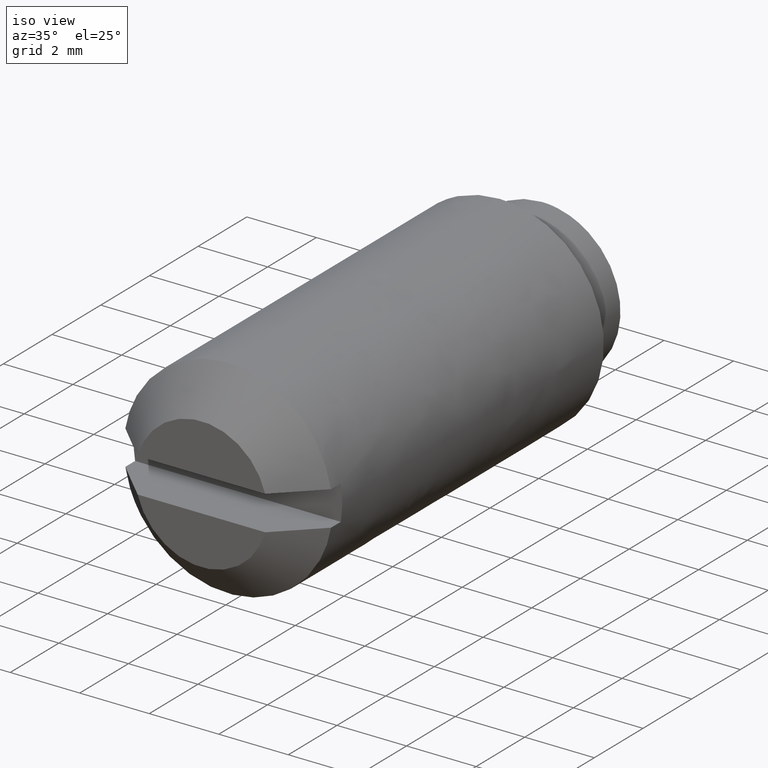
[diagram: clean part render]
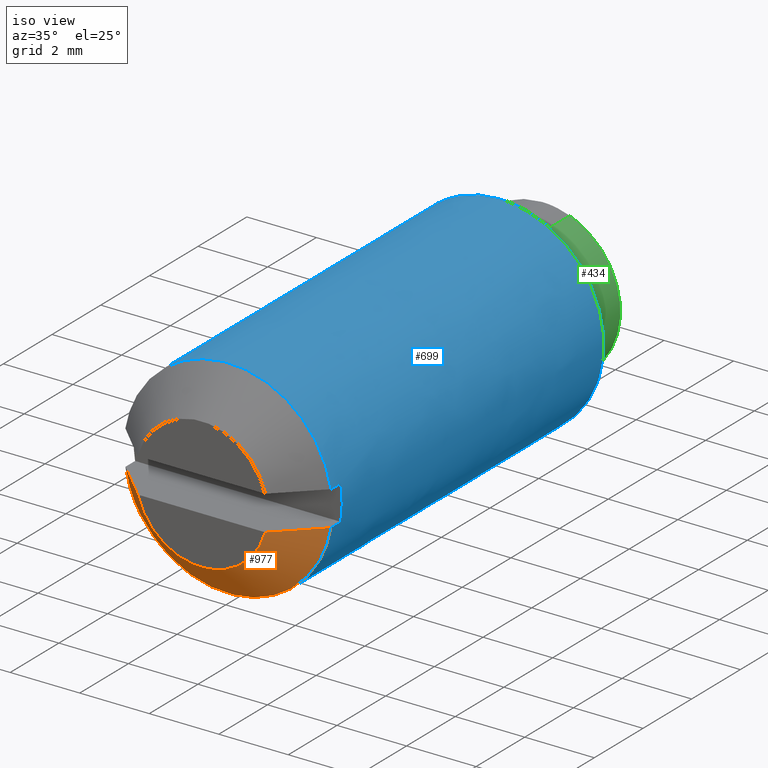
[diagram: same view with three faces highlighted in distinct colors, each labeled with its STEP entity id]
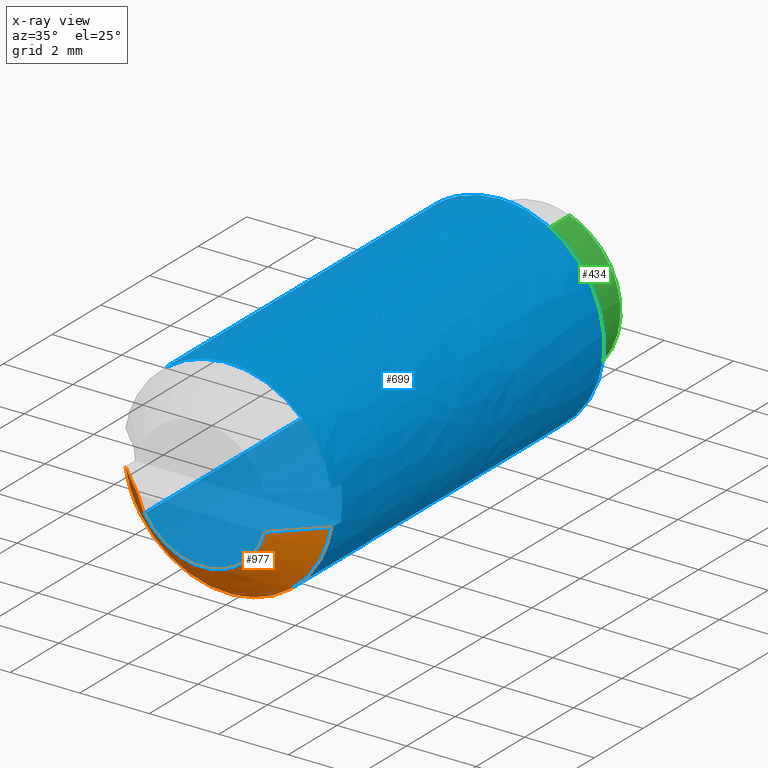
[diagram: x-ray of the same camera — body ghosted, the three highlighted faces saturated]
A machine part, iso view with three faces highlighted in distinct colors.
The next image is the same camera in x-ray (body ghosted, the three faces saturated) — at least one of them is partly hidden behind the body in this view.
Their STEP definitions:

[orange] entity #977 — the highlighted face is a freeform B-spline surface patch.
#668=CARTESIAN_POINT('',(2.958040000000000,-13.899999893066660,-0.500000000000000));
#669=VERTEX_POINT('',#668);
#675=CARTESIAN_POINT('',(-2.509682359129347,-13.899999941982850,-1.643622406676921));
#676=VERTEX_POINT('',#675);
#677=CARTESIAN_POINT('',(-2.509682359129347,-13.899999941982850,-1.643622406676921));
#678=CARTESIAN_POINT('',(-1.621373640052237,-13.900000000000006,-3.000000000000001));
#679=CARTESIAN_POINT('',(0.0,-13.900000000000000,-3.000000000000001));
#680=CARTESIAN_POINT('',(2.535462779678432,-13.899999999999997,-3.000000000000002));
#681=CARTESIAN_POINT('',(2.958040000000000,-13.899999893066660,-0.500000000000000));
#689=(BOUNDED_CURVE()B_SPLINE_CURVE(2,(#677,#678,#679,#680,#681),.UNSPECIFIED.,.F.,.U.)B_SPLINE_CURVE_WITH_KNOTS((3,2,3),(0.150493827314272,0.500000000000000,1.0),.UNSPECIFIED.)CURVE()GEOMETRIC_REPRESENTATION_ITEM()RATIONAL_B_SPLINE_CURVE((0.900594101952952,0.834867150664822,1.0,0.763762613881410,1.0))REPRESENTATION_ITEM(''));
#690=EDGE_CURVE('',#676,#669,#689,.T.);
#717=CARTESIAN_POINT('',(-2.958040000000000,-13.899999893066660,-0.500000000000000));
#718=VERTEX_POINT('',#717);
#719=CARTESIAN_POINT('',(-2.958040000000000,-13.899999893066660,-0.500000000000000));
#720=CARTESIAN_POINT('',(-2.853460558303233,-13.899999919530529,-1.118700184650195));
#721=CARTESIAN_POINT('',(-2.509682359129347,-13.899999941982850,-1.643622406676921));
#729=(BOUNDED_CURVE()B_SPLINE_CURVE(2,(#719,#720,#721),.UNSPECIFIED.,.F.,.U.)B_SPLINE_CURVE_WITH_KNOTS((3,3),(0.0,0.150493827314272),.UNSPECIFIED.)CURVE()GEOMETRIC_REPRESENTATION_ITEM()RATIONAL_B_SPLINE_CURVE((1.0,0.928895463216588,0.900594101952952))REPRESENTATION_ITEM(''));
#730=EDGE_CURVE('',#718,#676,#729,.T.);
#815=CARTESIAN_POINT('',(-1.833030277982315,-15.0,-0.500000000000000));
#816=VERTEX_POINT('',#815);
#817=CARTESIAN_POINT('',(-2.958040000000000,-13.899999893066660,-0.500000000000000));
#818=CARTESIAN_POINT('',(-2.725884110813422,-14.128895286865809,-0.500000000000000));
#819=CARTESIAN_POINT('',(-2.493388685310200,-14.357445338806111,-0.500000000000000));
#820=CARTESIAN_POINT('',(-2.118115684120962,-14.723837668115850,-0.500000000000000));
#821=CARTESIAN_POINT('',(-1.975870514145649,-14.862221454504450,-0.500000000000000));
#822=CARTESIAN_POINT('',(-1.833030277982315,-15.0,-0.500000000000000));
#823=B_SPLINE_CURVE_WITH_KNOTS('',3,(#817,#818,#819,#820,#821,#822),.UNSPECIFIED.,.F.,.U.,(4,2,4),(0.0,0.124999999999998,0.201088299456469),.UNSPECIFIED.);
#824=EDGE_CURVE('',#718,#816,#823,.T.);
#826=CARTESIAN_POINT('',(1.833030277982315,-15.0,-0.500000000000000));
#827=VERTEX_POINT('',#826);
#833=CARTESIAN_POINT('',(1.833030277982315,-15.0,-0.500000000000000));
#834=CARTESIAN_POINT('',(1.975982191906452,-14.862113812675039,-0.500000000000000));
#835=CARTESIAN_POINT('',(2.118337330155604,-14.723622414686570,-0.500000000000000));
#836=CARTESIAN_POINT('',(2.493609431272104,-14.357228372965499,-0.500000000000000));
#837=CARTESIAN_POINT('',(2.725994593454911,-14.128786411933890,-0.500000000000000));
#838=CARTESIAN_POINT('',(2.958040000000000,-13.899999893066660,-0.500000000000000));
#839=B_SPLINE_CURVE_WITH_KNOTS('',3,(#833,#834,#835,#836,#837,#838),.UNSPECIFIED.,.F.,.U.,(4,2,4),(0.798817205178109,0.874999999999998,1.0),.UNSPECIFIED.);
#840=EDGE_CURVE('',#827,#669,#839,.T.);
#910=CARTESIAN_POINT('',(-1.833030277982335,-15.0,-0.500000000000005));
#911=CARTESIAN_POINT('',(-1.451148970069346,-15.000000000000005,-1.900000000000001));
#912=CARTESIAN_POINT('',(0.0,-15.0,-1.900000000000001));
#913=CARTESIAN_POINT('',(1.451148970069345,-15.000000000000005,-1.900000000000001));
#914=CARTESIAN_POINT('',(1.833030277982334,-15.0,-0.500000000000006));
#922=(BOUNDED_CURVE()B_SPLINE_CURVE(2,(#910,#911,#912,#913,#914),.UNSPECIFIED.,.F.,.U.)B_SPLINE_CURVE_WITH_KNOTS((3,2,3),(0.0,0.500000000000000,1.0),.UNSPECIFIED.)CURVE()GEOMETRIC_REPRESENTATION_ITEM()RATIONAL_B_SPLINE_CURVE((1.0,0.794719414239027,1.0,0.794719414239027,1.0))REPRESENTATION_ITEM(''));
#923=EDGE_CURVE('',#816,#827,#922,.T.);
#952=CARTESIAN_POINT('',(-1.848963002582317,-15.027500002673341,-0.295959549719307));
#953=CARTESIAN_POINT('',(-2.990123825451625,-13.871812390326490,-0.478622719735159));
#954=CARTESIAN_POINT('',(-1.591689291081262,-15.027500002673333,-1.903238566576983));
#955=CARTESIAN_POINT('',(-2.574063442768320,-13.871812390326495,-3.077897705628577));
#956=CARTESIAN_POINT('',(0.035753377096346,-15.027500002673341,-1.872158630034987));
#957=CARTESIAN_POINT('',(0.057819991285294,-13.871812390326490,-3.027635554023621));
#958=CARTESIAN_POINT('',(1.663196045273955,-15.027500002673333,-1.841078693492991));
#959=CARTESIAN_POINT('',(2.689703425338910,-13.871812390326495,-2.977373402418666));
#960=CARTESIAN_POINT('',(1.858914819302903,-15.027500002673341,-0.225148694342931));
#961=CARTESIAN_POINT('',(3.006217800420944,-13.871812390326490,-0.364108137525673));
#969=(BOUNDED_SURFACE()B_SPLINE_SURFACE(1,2,((#952,#954,#956,#958,#960),(#953,#955,#957,#959,#961)),.UNSPECIFIED.,.F.,.F.,.U.)B_SPLINE_SURFACE_WITH_KNOTS((2,2),(3,2,3),(0.0,1.0),(0.0,4.528771815450542,9.057543630901083),.UNSPECIFIED.)GEOMETRIC_REPRESENTATION_ITEM()RATIONAL_B_SPLINE_SURFACE(((1.0,0.754709580222772,1.0,0.754709580222772,1.0),(1.0,0.754709580222772,1.0,0.754709580222772,1.0)))REPRESENTATION_ITEM('')SURFACE());
#970=ORIENTED_EDGE('',*,*,#824,.F.);
#971=ORIENTED_EDGE('',*,*,#730,.T.);
#972=ORIENTED_EDGE('',*,*,#690,.T.);
#973=ORIENTED_EDGE('',*,*,#840,.F.);
#974=ORIENTED_EDGE('',*,*,#923,.F.);
#975=EDGE_LOOP('',(#970,#971,#972,#973,#974));
#976=FACE_OUTER_BOUND('',#975,.T.);
#977=ADVANCED_FACE('',(#976),#969,.T.);

[blue] entity #699 — the highlighted face is a freeform B-spline surface patch.
#467=CARTESIAN_POINT('',(-1.784467472697592,-2.750000000000000,2.411571238608357));
#468=VERTEX_POINT('',#467);
#482=CARTESIAN_POINT('',(0.0,-2.750000000000000,2.999999999999999));
#483=VERTEX_POINT('',#482);
#484=CARTESIAN_POINT('',(0.0,-2.750000000000000,2.999999999999999));
#485=CARTESIAN_POINT('',(-0.989251029331300,-2.750000000000000,2.999999999999999));
#486=CARTESIAN_POINT('',(-1.784467472697592,-2.750000000000000,2.411571238608356));
#494=(BOUNDED_CURVE()B_SPLINE_CURVE(2,(#484,#485,#486),.UNSPECIFIED.,.F.,.U.)B_SPLINE_CURVE_WITH_KNOTS((3,3),(0.500000000000000,0.602574061870398),.UNSPECIFIED.)CURVE()GEOMETRIC_REPRESENTATION_ITEM()RATIONAL_B_SPLINE_CURVE((1.0,0.879827011408036,0.858267075351934))REPRESENTATION_ITEM(''));
#495=EDGE_CURVE('',#483,#468,#494,.T.);
#497=CARTESIAN_POINT('',(2.979028579091096,-2.750000000001402,-0.354102703981332));
#498=VERTEX_POINT('',#497);
#499=CARTESIAN_POINT('',(2.979028579091097,-2.750000000001402,-0.354102703981332));
#500=CARTESIAN_POINT('',(3.000000000000001,-2.750000000000000,-0.177672358966736));
#501=CARTESIAN_POINT('',(3.0,-2.750000000000000,-9.796851E-016));
#502=CARTESIAN_POINT('',(3.0,-2.750000000000000,2.999999999999999));
#503=CARTESIAN_POINT('',(0.0,-2.750000000000000,2.999999999999999));
#511=(BOUNDED_CURVE()B_SPLINE_CURVE(2,(#499,#500,#501,#502,#503),.UNSPECIFIED.,.F.,.U.)B_SPLINE_CURVE_WITH_KNOTS((3,2,3),(0.229562473514409,0.250000000000000,0.500000000000000),.UNSPECIFIED.)CURVE()GEOMETRIC_REPRESENTATION_ITEM()RATIONAL_B_SPLINE_CURVE((0.956026754185464,0.976055948332200,1.0,0.707106781186548,1.0))REPRESENTATION_ITEM(''));
#512=EDGE_CURVE('',#498,#483,#511,.T.);
#542=CARTESIAN_POINT('',(0.0,-2.750000000000000,-3.000000000000001));
#543=VERTEX_POINT('',#542);
#544=CARTESIAN_POINT('',(0.0,-2.750000000000000,-3.000000000000001));
#545=CARTESIAN_POINT('',(2.664523577834485,-2.750000000000000,-3.000000000000001));
#546=CARTESIAN_POINT('',(2.979028579091097,-2.750000000001402,-0.354102703981332));
#554=(BOUNDED_CURVE()B_SPLINE_CURVE(2,(#544,#545,#546),.UNSPECIFIED.,.F.,.U.)B_SPLINE_CURVE_WITH_KNOTS((3,3),(0.0,0.229562473514409),.UNSPECIFIED.)CURVE()GEOMETRIC_REPRESENTATION_ITEM()RATIONAL_B_SPLINE_CURVE((1.0,0.731050832854348,0.956026754185464))REPRESENTATION_ITEM(''));
#555=EDGE_CURVE('',#543,#498,#554,.T.);
#557=CARTESIAN_POINT('',(-2.509681558042595,-2.749999999999988,-1.643623581365348));
#558=VERTEX_POINT('',#557);
#559=CARTESIAN_POINT('',(-2.509681558042595,-2.749999999999987,-1.643623581365348));
#560=CARTESIAN_POINT('',(-1.621373253695192,-2.750000000000000,-3.000000000000002));
#561=CARTESIAN_POINT('',(0.0,-2.750000000000000,-3.000000000000001));
#569=(BOUNDED_CURVE()B_SPLINE_CURVE(2,(#559,#560,#561),.UNSPECIFIED.,.F.,.U.)B_SPLINE_CURVE_WITH_KNOTS((3,3),(0.843871112190330,1.0),.UNSPECIFIED.)CURVE()GEOMETRIC_REPRESENTATION_ITEM()RATIONAL_B_SPLINE_CURVE((0.862635495281240,0.817083629998645,1.0))REPRESENTATION_ITEM(''));
#570=EDGE_CURVE('',#558,#543,#569,.T.);
#592=CARTESIAN_POINT('',(-2.509681119573877,-2.471250000000000,-1.643624250871958));
#593=CARTESIAN_POINT('',(-2.462641299662661,-2.471250000000000,-1.715450246282227));
#594=CARTESIAN_POINT('',(-2.411570581851651,-2.471250000000000,-1.784468360254025));
#595=CARTESIAN_POINT('',(-0.627102221597627,-2.471249999999999,-4.196038942105676));
#596=CARTESIAN_POINT('',(1.784468360254024,-2.471250000000000,-2.411570581851652));
#597=CARTESIAN_POINT('',(4.196038942105675,-2.471249999999999,-0.627102221597628));
#598=CARTESIAN_POINT('',(2.411570581851651,-2.471250000000000,1.784468360254023));
#599=CARTESIAN_POINT('',(0.627102221597627,-2.471249999999999,4.196038942105675));
#600=CARTESIAN_POINT('',(-1.784468360254024,-2.471250000000000,2.411570581851650));
#601=CARTESIAN_POINT('',(-2.509681119573877,-14.185718750000007,-1.643624250871958));
#602=CARTESIAN_POINT('',(-2.462641299662661,-14.185718750000003,-1.715450246282227));
#603=CARTESIAN_POINT('',(-2.411570581851651,-14.185718749999999,-1.784468360254025));
#604=CARTESIAN_POINT('',(-0.627102221597627,-14.185718750000007,-4.196038942105676));
#605=CARTESIAN_POINT('',(1.784468360254024,-14.185718749999999,-2.411570581851652));
#606=CARTESIAN_POINT('',(4.196038942105675,-14.185718750000007,-0.627102221597628));
#607=CARTESIAN_POINT('',(2.411570581851651,-14.185718749999999,1.784468360254023));
#608=CARTESIAN_POINT('',(0.627102221597627,-14.185718750000007,4.196038942105675));
#609=CARTESIAN_POINT('',(-1.784468360254024,-14.185718749999999,2.411570581851650));
#617=(BOUNDED_SURFACE()B_SPLINE_SURFACE(2,1,((#592,#601),(#593,#602),(#594,#603),(#595,#604),(#596,#605),(#597,#606),(#598,#607),(#599,#608),(#600,#609)),.UNSPECIFIED.,.F.,.F.,.U.)B_SPLINE_SURFACE_WITH_KNOTS((3,2,2,2,3),(2,2),(0.0,0.198822509939086,5.169385258416225,10.139948006893359,15.110510755370500),(0.0,11.714468750000000),.UNSPECIFIED.)GEOMETRIC_REPRESENTATION_ITEM()RATIONAL_B_SPLINE_SURFACE(((0.977505800795127,0.977505800795127),(0.988284271247462,0.988284271247462),(1.0,1.0),(0.707106781186548,0.707106781186548),(1.0,1.0),(0.707106781186548,0.707106781186548),(1.0,1.0),(0.707106781186548,0.707106781186548),(1.0,1.0)))REPRESENTATION_ITEM('')SURFACE());
#618=ORIENTED_EDGE('',*,*,#570,.T.);
#619=ORIENTED_EDGE('',*,*,#555,.T.);
#620=ORIENTED_EDGE('',*,*,#512,.T.);
#621=ORIENTED_EDGE('',*,*,#495,.T.);
#622=CARTESIAN_POINT('',(-1.784468027591534,-13.900000000000000,2.411570828008873));
#623=VERTEX_POINT('',#622);
#624=CARTESIAN_POINT('',(-1.784467472697592,-2.750000000000000,2.411571238608357));
#625=CARTESIAN_POINT('',(-1.784468027591534,-13.900000000000000,2.411570828008873));
#626=QUASI_UNIFORM_CURVE('',1,(#624,#625),.UNSPECIFIED.,.F.,.U.);
#627=EDGE_CURVE('',#468,#623,#626,.T.);
#628=ORIENTED_EDGE('',*,*,#627,.T.);
#629=CARTESIAN_POINT('',(2.958040000000000,-13.899999893066660,0.500000000000000));
#630=VERTEX_POINT('',#629);
#631=CARTESIAN_POINT('',(2.958040000000000,-13.899999893066660,0.500000000000000));
#632=CARTESIAN_POINT('',(2.535462780969507,-13.899999999999997,2.999999992361905));
#633=CARTESIAN_POINT('',(9.037515E-009,-13.900000000000000,2.999999999999999));
#634=CARTESIAN_POINT('',(-0.989251178562311,-13.899999999999997,3.000000002980124));
#635=CARTESIAN_POINT('',(-1.784468027591534,-13.900000000000000,2.411570828008873));
#643=(BOUNDED_CURVE()B_SPLINE_CURVE(2,(#631,#632,#633,#634,#635),.UNSPECIFIED.,.F.,.U.)B_SPLINE_CURVE_WITH_KNOTS((3,2,3),(0.0,0.500000000000000,0.727918127711953),.UNSPECIFIED.)CURVE()GEOMETRIC_REPRESENTATION_ITEM()RATIONAL_B_SPLINE_CURVE((1.0,0.763762614853692,1.0,0.892314434963772,0.882802839386187))REPRESENTATION_ITEM(''));
#644=EDGE_CURVE('',#630,#623,#643,.T.);
#645=ORIENTED_EDGE('',*,*,#644,.F.);
#646=CARTESIAN_POINT('',(2.958040000000000,-13.500000000000000,0.500000000000000));
#647=VERTEX_POINT('',#646);
#648=CARTESIAN_POINT('',(2.958040000000000,-13.500000000000000,0.500000000000000));
#649=CARTESIAN_POINT('',(2.958040000000000,-13.899999893066660,0.500000000000000));
#650=QUASI_UNIFORM_CURVE('',1,(#648,#649),.UNSPECIFIED.,.F.,.U.);
#651=EDGE_CURVE('',#647,#630,#650,.T.);
#652=ORIENTED_EDGE('',*,*,#651,.F.);
#653=CARTESIAN_POINT('',(2.958040000000000,-13.500000000000000,-0.500000000000000));
#654=VERTEX_POINT('',#653);
#655=CARTESIAN_POINT('',(2.958040000000000,-13.500000000000000,-0.500000000000000));
#656=CARTESIAN_POINT('',(3.042555313924083,-13.500000000000000,2.168404E-016));
#657=CARTESIAN_POINT('',(2.958040000000000,-13.500000000000000,0.500000000000000));
#665=(BOUNDED_CURVE()B_SPLINE_CURVE(2,(#655,#656,#657),.UNSPECIFIED.,.F.,.U.)CURVE()GEOMETRIC_REPRESENTATION_ITEM()QUASI_UNIFORM_CURVE()RATIONAL_B_SPLINE_CURVE((1.0,0.986013298187438,1.0))REPRESENTATION_ITEM(''));
#666=EDGE_CURVE('',#654,#647,#665,.T.);
#667=ORIENTED_EDGE('',*,*,#666,.F.);
#668=CARTESIAN_POINT('',(2.958040000000000,-13.899999893066660,-0.500000000000000));
#669=VERTEX_POINT('',#668);
#670=CARTESIAN_POINT('',(2.958040000000000,-13.500000000000000,-0.500000000000000));
#671=CARTESIAN_POINT('',(2.958040000000000,-13.899999893066660,-0.500000000000000));
#672=QUASI_UNIFORM_CURVE('',1,(#670,#671),.UNSPECIFIED.,.F.,.U.);
#673=EDGE_CURVE('',#654,#669,#672,.T.);
#674=ORIENTED_EDGE('',*,*,#673,.T.);
#675=CARTESIAN_POINT('',(-2.509682359129347,-13.899999941982850,-1.643622406676921));
#676=VERTEX_POINT('',#675);
#677=CARTESIAN_POINT('',(-2.509682359129347,-13.899999941982850,-1.643622406676921));
#678=CARTESIAN_POINT('',(-1.621373640052237,-13.900000000000006,-3.000000000000001));
#679=CARTESIAN_POINT('',(0.0,-13.900000000000000,-3.000000000000001));
#680=CARTESIAN_POINT('',(2.535462779678432,-13.899999999999997,-3.000000000000002));
#681=CARTESIAN_POINT('',(2.958040000000000,-13.899999893066660,-0.500000000000000));
#689=(BOUNDED_CURVE()B_SPLINE_CURVE(2,(#677,#678,#679,#680,#681),.UNSPECIFIED.,.F.,.U.)B_SPLINE_CURVE_WITH_KNOTS((3,2,3),(0.150493827314272,0.500000000000000,1.0),.UNSPECIFIED.)CURVE()GEOMETRIC_REPRESENTATION_ITEM()RATIONAL_B_SPLINE_CURVE((0.900594101952952,0.834867150664822,1.0,0.763762613881410,1.0))REPRESENTATION_ITEM(''));
#690=EDGE_CURVE('',#676,#669,#689,.T.);
#691=ORIENTED_EDGE('',*,*,#690,.F.);
#692=CARTESIAN_POINT('',(-2.509681558042595,-2.749999999999988,-1.643623581365348));
#693=CARTESIAN_POINT('',(-2.509682359129347,-13.899999941982850,-1.643622406676921));
#694=QUASI_UNIFORM_CURVE('',1,(#692,#693),.UNSPECIFIED.,.F.,.U.);
#695=EDGE_CURVE('',#558,#676,#694,.T.);
#696=ORIENTED_EDGE('',*,*,#695,.F.);
#697=EDGE_LOOP('',(#618,#619,#620,#621,#628,#645,#652,#667,#674,#691,#696));
#698=FACE_OUTER_BOUND('',#697,.T.);
#699=ADVANCED_FACE('',(#698),#617,.T.);

[green] entity #434 — the highlighted face is a freeform B-spline surface patch.
#252=CARTESIAN_POINT('',(0.791140442382787,-2.0,2.106323052246821));
#253=VERTEX_POINT('',#252);
#269=CARTESIAN_POINT('',(0.791138014913889,-1.0,2.106323964007289));
#270=VERTEX_POINT('',#269);
#271=CARTESIAN_POINT('',(0.791138014913889,-1.0,2.106323964007289));
#272=CARTESIAN_POINT('',(0.791140442382787,-2.0,2.106323052246821));
#273=QUASI_UNIFORM_CURVE('',1,(#271,#272),.UNSPECIFIED.,.F.,.U.);
#274=EDGE_CURVE('',#270,#253,#273,.T.);
#291=CARTESIAN_POINT('',(-2.245803548431797,-1.0,0.137355093950345));
#292=VERTEX_POINT('',#291);
#306=CARTESIAN_POINT('',(-2.245803296450222,-2.000000000004009,0.137359213967844));
#307=VERTEX_POINT('',#306);
#308=CARTESIAN_POINT('',(-2.245803548431797,-1.0,0.137355093950345));
#309=CARTESIAN_POINT('',(-2.245803296450222,-2.000000000004009,0.137359213967844));
#310=QUASI_UNIFORM_CURVE('',1,(#308,#309),.UNSPECIFIED.,.F.,.U.);
#311=EDGE_CURVE('',#292,#307,#310,.T.);
#329=CARTESIAN_POINT('',(-2.245803296449200,-0.975000000000000,0.137359213953427));
#330=CARTESIAN_POINT('',(-2.383162510402629,-0.975000000000000,-2.108444082495772));
#331=CARTESIAN_POINT('',(-0.137359213953428,-0.975000000000000,-2.245803296449201));
#332=CARTESIAN_POINT('',(2.108444082495772,-0.975000000000000,-2.383162510402629));
#333=CARTESIAN_POINT('',(2.245803296449200,-0.975000000000000,-0.137359213953429));
#334=CARTESIAN_POINT('',(2.347283751456018,-0.975000000000000,1.521831559056896));
#335=CARTESIAN_POINT('',(0.791140442381037,-0.975000000000000,2.106323052247478));
#336=CARTESIAN_POINT('',(-2.245803296449200,-2.025625000000000,0.137359213953427));
#337=CARTESIAN_POINT('',(-2.383162510402629,-2.025624999999999,-2.108444082495772));
#338=CARTESIAN_POINT('',(-0.137359213953428,-2.025625000000000,-2.245803296449201));
#339=CARTESIAN_POINT('',(2.108444082495772,-2.025624999999999,-2.383162510402629));
#340=CARTESIAN_POINT('',(2.245803296449200,-2.025625000000000,-0.137359213953429));
#341=CARTESIAN_POINT('',(2.347283751456018,-2.025624999999999,1.521831559056896));
#342=CARTESIAN_POINT('',(0.791140442381037,-2.025625000000000,2.106323052247478));
#350=(BOUNDED_SURFACE()B_SPLINE_SURFACE(2,1,((#329,#336),(#330,#337),(#331,#338),(#332,#339),(#333,#340),(#334,#341),(#335,#342)),.UNSPECIFIED.,.F.,.F.,.U.)B_SPLINE_SURFACE_WITH_KNOTS((3,2,2,3),(2,2),(0.0,3.727922061357854,7.455844122715709,10.438181771801990),(0.0,1.0),.UNSPECIFIED.)GEOMETRIC_REPRESENTATION_ITEM()RATIONAL_B_SPLINE_SURFACE(((1.0,1.0),(0.707106781186548,0.707106781186548),(1.0,1.0),(0.707106781186548,0.707106781186548),(1.0,1.0),(0.765685424949238,0.765685424949238),(0.906274169979695,0.906274169979695)))REPRESENTATION_ITEM('')SURFACE());
#351=CARTESIAN_POINT('',(2.234271434318409,-2.000000000002305,-0.265577027995891));
#352=VERTEX_POINT('',#351);
#353=CARTESIAN_POINT('',(2.234271434318409,-2.000000000002306,-0.265577027995891));
#354=CARTESIAN_POINT('',(2.250000000000000,-2.000000000000000,-0.133254269234900));
#355=CARTESIAN_POINT('',(2.250000000000000,-2.0,-9.796851E-016));
#356=CARTESIAN_POINT('',(2.250000000000000,-2.000000000000000,1.558371590309681));
#357=CARTESIAN_POINT('',(0.791140442382787,-2.0,2.106323052246820));
#365=(BOUNDED_CURVE()B_SPLINE_CURVE(2,(#353,#354,#355,#356,#357),.UNSPECIFIED.,.F.,.U.)B_SPLINE_CURVE_WITH_KNOTS((3,2,3),(0.229562473512934,0.250000000000000,0.440284170898647),.UNSPECIFIED.)CURVE()GEOMETRIC_REPRESENTATION_ITEM()RATIONAL_B_SPLINE_CURVE((0.956026754182574,0.976055948330473,1.0,0.777068226784984,0.893499554635445))REPRESENTATION_ITEM(''));
#366=EDGE_CURVE('',#352,#253,#365,.T.);
#367=ORIENTED_EDGE('',*,*,#366,.F.);
#368=CARTESIAN_POINT('',(0.0,-2.0,-2.250000000000001));
#369=VERTEX_POINT('',#368);
#370=CARTESIAN_POINT('',(0.0,-2.0,-2.250000000000001));
#371=CARTESIAN_POINT('',(1.998392683358309,-2.000000000000000,-2.250000000000001));
#372=CARTESIAN_POINT('',(2.234271434318410,-2.000000000002305,-0.265577027995891));
#380=(BOUNDED_CURVE()B_SPLINE_CURVE(2,(#370,#371,#372),.UNSPECIFIED.,.F.,.U.)B_SPLINE_CURVE_WITH_KNOTS((3,3),(0.0,0.229562473512934),.UNSPECIFIED.)CURVE()GEOMETRIC_REPRESENTATION_ITEM()RATIONAL_B_SPLINE_CURVE((1.0,0.731050832856075,0.956026754182574))REPRESENTATION_ITEM(''));
#381=EDGE_CURVE('',#369,#352,#380,.T.);
#382=ORIENTED_EDGE('',*,*,#381,.F.);
#383=CARTESIAN_POINT('',(-2.245803296450222,-2.000000000004009,0.137359213967844));
#384=CARTESIAN_POINT('',(-2.250000000000000,-2.000000000000000,0.068743717450506));
#385=CARTESIAN_POINT('',(-2.250000000000000,-2.0,-9.796851E-016));
#386=CARTESIAN_POINT('',(-2.250000000000000,-2.0,-2.250000000000000));
#387=CARTESIAN_POINT('',(0.0,-2.0,-2.250000000000001));
#395=(BOUNDED_CURVE()B_SPLINE_CURVE(2,(#383,#384,#385,#386,#387),.UNSPECIFIED.,.F.,.U.)B_SPLINE_CURVE_WITH_KNOTS((3,2,3),(0.739332962237573,0.750000000000000,1.0),.UNSPECIFIED.)CURVE()GEOMETRIC_REPRESENTATION_ITEM()RATIONAL_B_SPLINE_CURVE((0.976072041663782,0.987502787898233,1.0,0.707106781186547,1.0))REPRESENTATION_ITEM(''));
#396=EDGE_CURVE('',#307,#369,#395,.T.);
#397=ORIENTED_EDGE('',*,*,#396,.F.);
#398=ORIENTED_EDGE('',*,*,#311,.F.);
#399=CARTESIAN_POINT('',(0.0,-1.0,-2.250000000000001));
#400=VERTEX_POINT('',#399);
#401=CARTESIAN_POINT('',(-2.245803548431797,-1.0,0.137355093950345));
#402=CARTESIAN_POINT('',(-2.250000000000000,-1.0,0.068741651644528));
#403=CARTESIAN_POINT('',(-2.250000000000000,-1.0,-9.796851E-016));
#404=CARTESIAN_POINT('',(-2.250000000000000,-1.0,-2.250000000000000));
#405=CARTESIAN_POINT('',(0.0,-1.0,-2.250000000000001));
#413=(BOUNDED_CURVE()B_SPLINE_CURVE(2,(#401,#402,#403,#404,#405),.UNSPECIFIED.,.F.,.U.)B_SPLINE_CURVE_WITH_KNOTS((3,2,3),(0.739333278785040,0.750000000000000,1.0),.UNSPECIFIED.)CURVE()GEOMETRIC_REPRESENTATION_ITEM()RATIONAL_B_SPLINE_CURVE((0.976072720086199,0.987503158756658,1.0,0.707106781186547,1.0))REPRESENTATION_ITEM(''));
#414=EDGE_CURVE('',#292,#400,#413,.T.);
#415=ORIENTED_EDGE('',*,*,#414,.T.);
#416=CARTESIAN_POINT('',(0.0,-1.0,-2.250000000000001));
#417=CARTESIAN_POINT('',(2.250000000000000,-1.0,-2.250000000000000));
#418=CARTESIAN_POINT('',(2.250000000000000,-1.0,-9.796851E-016));
#419=CARTESIAN_POINT('',(2.250000000000000,-1.0,1.558373508790894));
#420=CARTESIAN_POINT('',(0.791138014913889,-1.0,2.106323964007289));
#428=(BOUNDED_CURVE()B_SPLINE_CURVE(2,(#416,#417,#418,#419,#420),.UNSPECIFIED.,.F.,.U.)B_SPLINE_CURVE_WITH_KNOTS((3,2,3),(0.0,0.250000000000000,0.440284352930849),.UNSPECIFIED.)CURVE()GEOMETRIC_REPRESENTATION_ITEM()RATIONAL_B_SPLINE_CURVE((1.0,0.707106781186547,1.0,0.777068013520994,0.893499777399960))REPRESENTATION_ITEM(''));
#429=EDGE_CURVE('',#400,#270,#428,.T.);
#430=ORIENTED_EDGE('',*,*,#429,.T.);
#431=ORIENTED_EDGE('',*,*,#274,.T.);
#432=EDGE_LOOP('',(#367,#382,#397,#398,#415,#430,#431));
#433=FACE_OUTER_BOUND('',#432,.T.);
#434=ADVANCED_FACE('',(#433),#350,.T.);